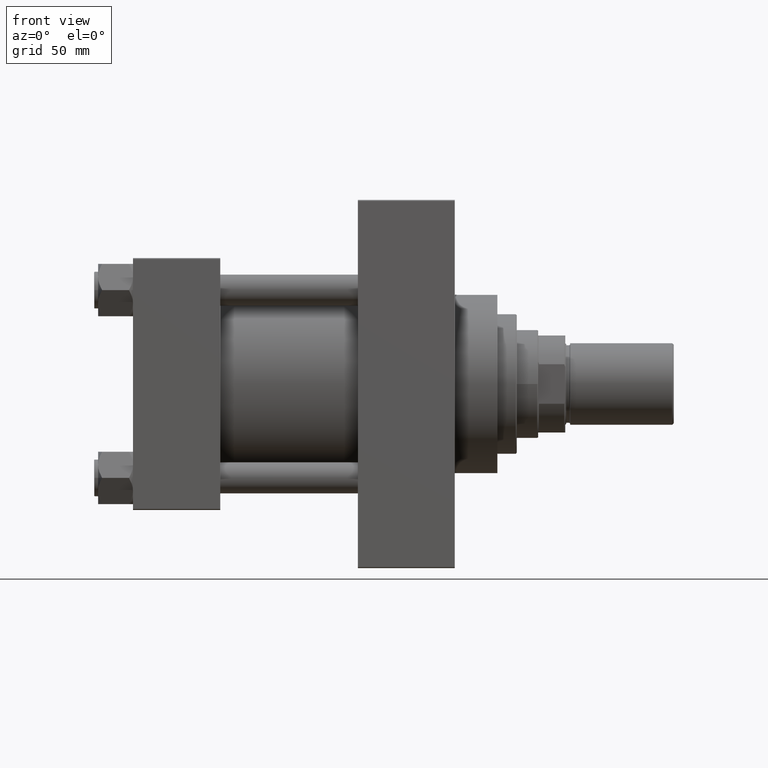
[diagram: clean part render]
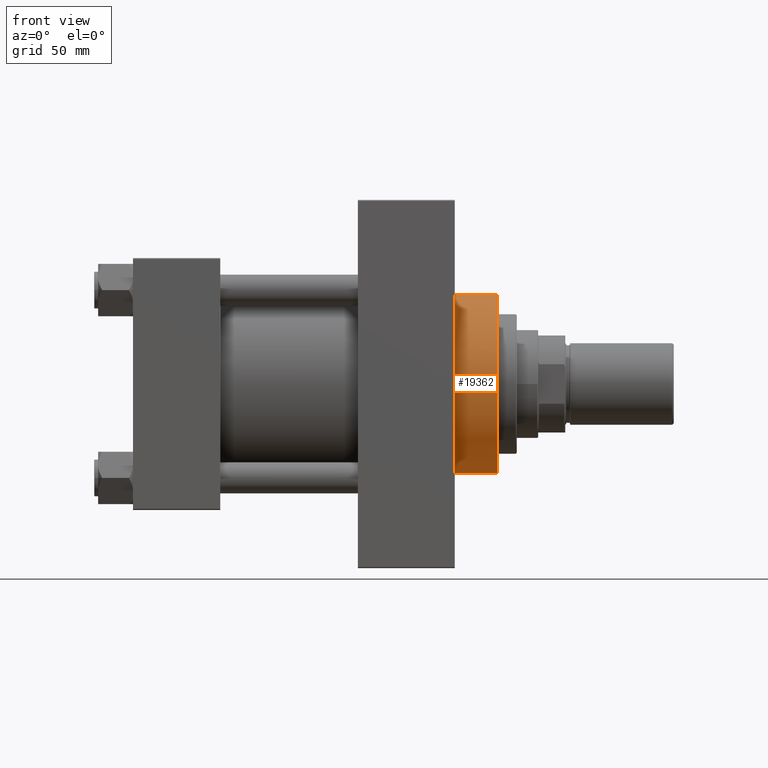
[diagram: same view with one face highlighted and labeled with its STEP entity id]
A machine part, front view. The second image highlights one B-rep face of the part: STEP entity #19362.
In plain terms, the highlighted cylindrical surface (partial cylindrical patch) has radius 46 mm, axis along (-1, -0, -0).
Its self-contained STEP definition (entity closure, byte-faithful):
#333 = CYLINDRICAL_SURFACE ( 'NONE', #41443, 46.00000000000000000 ) ;
#3886 = EDGE_CURVE ( 'NONE', #41370, #19797, #10304, .T. ) ;
#7932 = CARTESIAN_POINT ( 'NONE',  ( 187.9999999999999716, 0.000000000000000000, 0.000000000000000000 ) ) ;
#9543 = AXIS2_PLACEMENT_3D ( 'NONE', #46823, #42427, #27036 ) ;
#9653 = CARTESIAN_POINT ( 'NONE',  ( 165.9999999999999716, 0.000000000000000000, 46.00000000000000000 ) ) ;
#10197 = VERTEX_POINT ( 'NONE', #43139 ) ;
#10304 = CIRCLE ( 'NONE', #37657, 46.00000000000000000 ) ;
#11293 = CARTESIAN_POINT ( 'NONE',  ( 165.9999999999999716, 0.000000000000000000, 0.000000000000000000 ) ) ;
#11595 = DIRECTION ( 'NONE',  ( 0.000000000000000000, 0.000000000000000000, 1.000000000000000000 ) ) ;
#14380 = EDGE_LOOP ( 'NONE', ( #38964, #41007, #31381, #36870 ) ) ;
#15938 = EDGE_CURVE ( 'NONE', #10197, #41370, #26054, .T. ) ;
#15951 = CARTESIAN_POINT ( 'NONE',  ( 187.9999999999999716, 0.000000000000000000, 46.00000000000000000 ) ) ;
#17204 = VERTEX_POINT ( 'NONE', #33321 ) ;
#19362 = ADVANCED_FACE ( 'NONE', ( #27503 ), #333, .T. ) ;
#19797 = VERTEX_POINT ( 'NONE', #45260 ) ;
#22085 = DIRECTION ( 'NONE',  ( 1.000000000000000000, 0.000000000000000000, 0.000000000000000000 ) ) ;
#22943 = CARTESIAN_POINT ( 'NONE',  ( 187.9999999999999716, 5.633375276077824704E-15, -46.00000000000000000 ) ) ;
#23325 = VECTOR ( 'NONE', #31128, 1000.000000000000000 ) ;
#23845 = EDGE_CURVE ( 'NONE', #10197, #17204, #39241, .T. ) ;
#26054 = LINE ( 'NONE', #15951, #23325 ) ;
#26382 = LINE ( 'NONE', #22943, #43299 ) ;
#27036 = DIRECTION ( 'NONE',  ( 0.000000000000000000, 0.000000000000000000, -1.000000000000000000 ) ) ;
#27503 = FACE_OUTER_BOUND ( 'NONE', #14380, .T. ) ;
#31128 = DIRECTION ( 'NONE',  ( -1.000000000000000000, -0.000000000000000000, -0.000000000000000000 ) ) ;
#31381 = ORIENTED_EDGE ( 'NONE', *, *, #15938, .T. ) ;
#32005 = EDGE_CURVE ( 'NONE', #17204, #19797, #26382, .T. ) ;
#33321 = CARTESIAN_POINT ( 'NONE',  ( 187.9999999999999716, 5.633375276077824704E-15, -46.00000000000000000 ) ) ;
#34119 = DIRECTION ( 'NONE',  ( -1.000000000000000000, -0.000000000000000000, -0.000000000000000000 ) ) ;
#36870 = ORIENTED_EDGE ( 'NONE', *, *, #3886, .T. ) ;
#37657 = AXIS2_PLACEMENT_3D ( 'NONE', #11293, #22085, #44832 ) ;
#37856 = DIRECTION ( 'NONE',  ( -1.000000000000000000, -0.000000000000000000, -0.000000000000000000 ) ) ;
#38964 = ORIENTED_EDGE ( 'NONE', *, *, #32005, .F. ) ;
#39241 = CIRCLE ( 'NONE', #9543, 46.00000000000000000 ) ;
#41007 = ORIENTED_EDGE ( 'NONE', *, *, #23845, .F. ) ;
#41370 = VERTEX_POINT ( 'NONE', #9653 ) ;
#41443 = AXIS2_PLACEMENT_3D ( 'NONE', #7932, #34119, #11595 ) ;
#42427 = DIRECTION ( 'NONE',  ( 1.000000000000000000, 0.000000000000000000, 0.000000000000000000 ) ) ;
#43139 = CARTESIAN_POINT ( 'NONE',  ( 187.9999999999999716, 0.000000000000000000, 46.00000000000000000 ) ) ;
#43299 = VECTOR ( 'NONE', #37856, 1000.000000000000000 ) ;
#44832 = DIRECTION ( 'NONE',  ( 0.000000000000000000, 0.000000000000000000, -1.000000000000000000 ) ) ;
#45260 = CARTESIAN_POINT ( 'NONE',  ( 165.9999999999999716, 5.633375276077824704E-15, -46.00000000000000000 ) ) ;
#46823 = CARTESIAN_POINT ( 'NONE',  ( 187.9999999999999716, 0.000000000000000000, 0.000000000000000000 ) ) ;